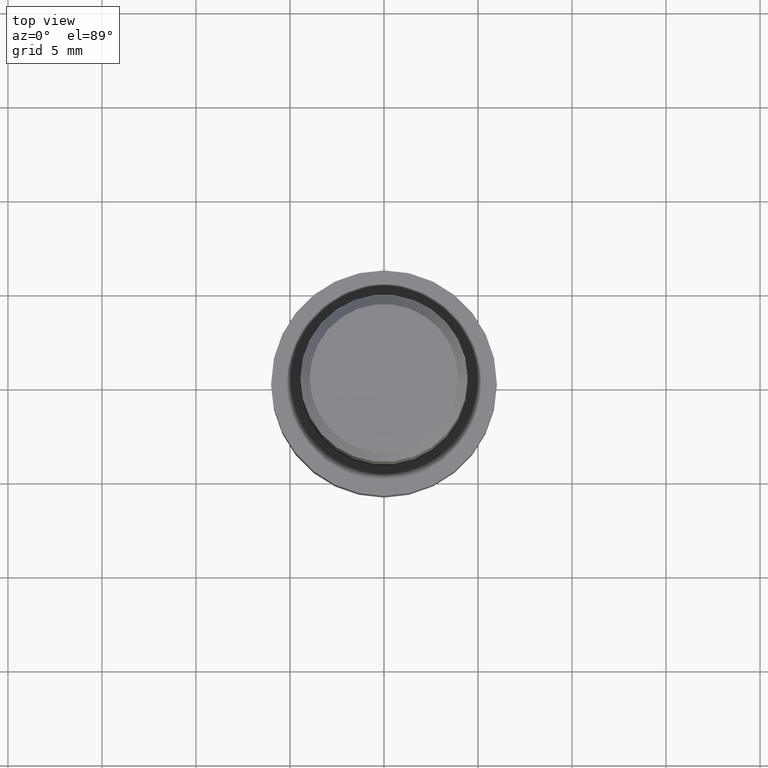
[diagram: clean part render]
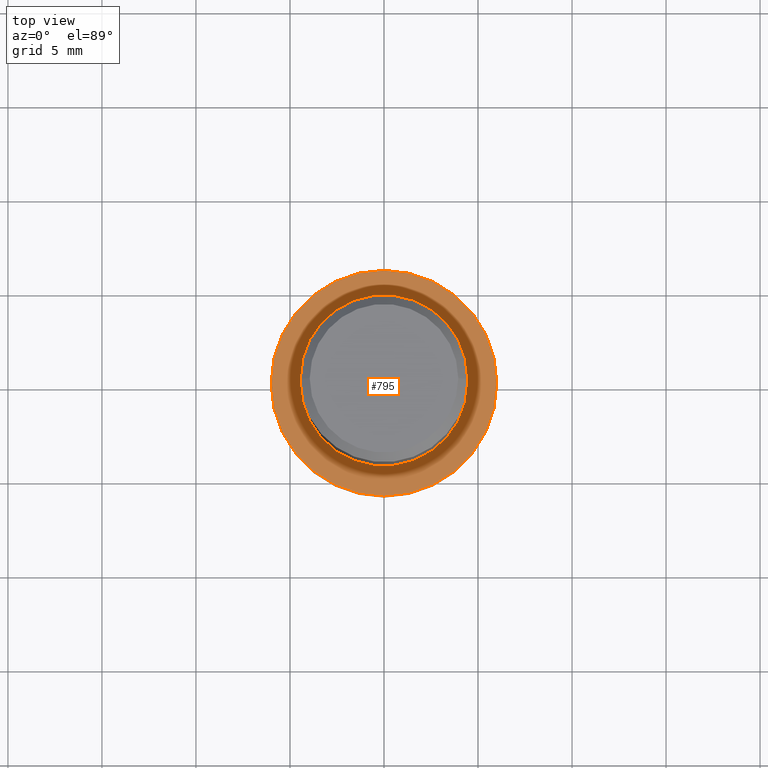
[diagram: same view with one face highlighted and labeled with its STEP entity id]
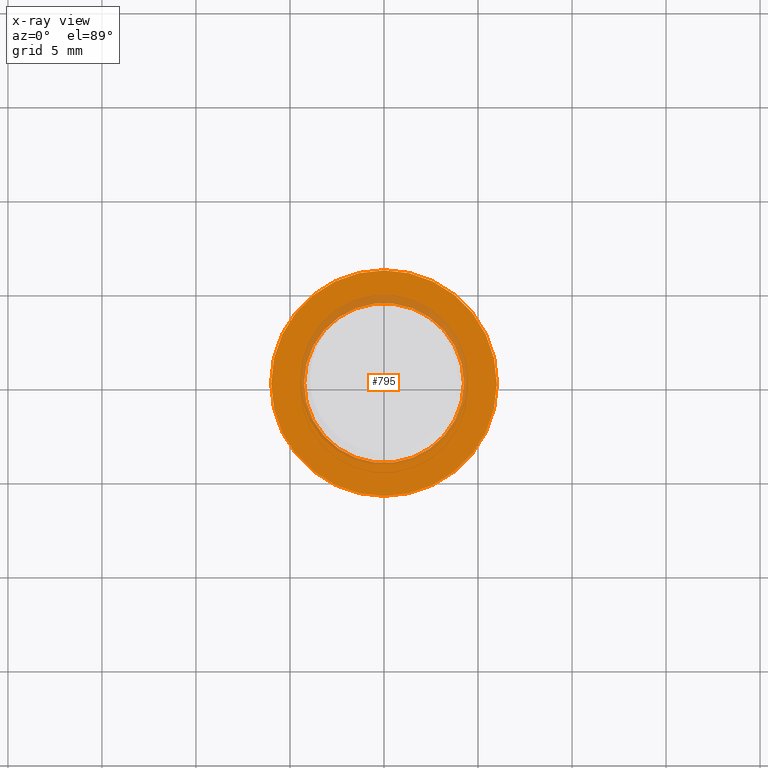
[diagram: x-ray of the same camera — body ghosted, the highlighted face saturated]
A machine part, top view. The second image highlights one B-rep face of the part: STEP entity #795.
The next image is the same camera in x-ray: the body ghosted, the highlighted face saturated — about 12% of this face is hidden behind the body in this view.
In plain terms, the highlighted planar face has unit normal (0, 0, 1).
Its self-contained STEP definition (entity closure, byte-faithful):
#124 = EDGE_CURVE ( 'NONE', #860, #12653, #7501, .T. ) ;
#247 = EDGE_LOOP ( 'NONE', ( #1302, #12183 ) ) ;
#773 = ORIENTED_EDGE ( 'NONE', *, *, #10789, .T. ) ;
#795 = ADVANCED_FACE ( 'NONE', ( #8153, #8984 ), #2700, .T. ) ;
#860 = VERTEX_POINT ( 'NONE', #2040 ) ;
#1302 = ORIENTED_EDGE ( 'NONE', *, *, #9576, .F. ) ;
#1421 = CARTESIAN_POINT ( 'NONE',  ( 0.000000000000000000, -2.143131898507868643E-15, 2.499999999999998668 ) ) ;
#1762 = DIRECTION ( 'NONE',  ( -0.000000000000000000, -0.000000000000000000, -1.000000000000000000 ) ) ;
#2040 = CARTESIAN_POINT ( 'NONE',  ( 6.000000000000001776, -1.408343819019456570E-15, 2.499999999999998668 ) ) ;
#2118 = ORIENTED_EDGE ( 'NONE', *, *, #8279, .T. ) ;
#2177 = CIRCLE ( 'NONE', #5194, 6.000000000000001776 ) ;
#2700 = PLANE ( 'NONE',  #8989 ) ;
#2796 = CARTESIAN_POINT ( 'NONE',  ( 0.000000000000000000, 4.249999999999996447, 2.499999999999999556 ) ) ;
#2897 = CARTESIAN_POINT ( 'NONE',  ( 0.000000000000000000, -2.143131898507868643E-15, 2.499999999999998668 ) ) ;
#3889 = CARTESIAN_POINT ( 'NONE',  ( 0.000000000000000000, -2.143131898507868643E-15, 2.499999999999998668 ) ) ;
#5194 = AXIS2_PLACEMENT_3D ( 'NONE', #2897, #1762, #9355 ) ;
#5221 = CIRCLE ( 'NONE', #6943, 4.249999999999998224 ) ;
#5859 = DIRECTION ( 'NONE',  ( -0.000000000000000000, -0.000000000000000000, -1.000000000000000000 ) ) ;
#6009 = DIRECTION ( 'NONE',  ( 1.000000000000000000, 0.000000000000000000, -0.000000000000000000 ) ) ;
#6943 = AXIS2_PLACEMENT_3D ( 'NONE', #1421, #5859, #8185 ) ;
#7353 = EDGE_LOOP ( 'NONE', ( #2118, #773 ) ) ;
#7501 = CIRCLE ( 'NONE', #11623, 6.000000000000001776 ) ;
#7534 = AXIS2_PLACEMENT_3D ( 'NONE', #3889, #8291, #13527 ) ;
#8048 = DIRECTION ( 'NONE',  ( -1.000000000000000000, 0.000000000000000000, 0.000000000000000000 ) ) ;
#8153 = FACE_BOUND ( 'NONE', #7353, .T. ) ;
#8185 = DIRECTION ( 'NONE',  ( -1.000000000000000000, 0.000000000000000000, 0.000000000000000000 ) ) ;
#8279 = EDGE_CURVE ( 'NONE', #10210, #13733, #9569, .T. ) ;
#8291 = DIRECTION ( 'NONE',  ( -0.000000000000000000, -0.000000000000000000, -1.000000000000000000 ) ) ;
#8984 = FACE_OUTER_BOUND ( 'NONE', #247, .T. ) ;
#8989 = AXIS2_PLACEMENT_3D ( 'NONE', #2796, #12628, #6009 ) ;
#9355 = DIRECTION ( 'NONE',  ( -1.000000000000000000, 0.000000000000000000, 0.000000000000000000 ) ) ;
#9569 = CIRCLE ( 'NONE', #7534, 4.249999999999998224 ) ;
#9576 = EDGE_CURVE ( 'NONE', #12653, #860, #2177, .T. ) ;
#10123 = DIRECTION ( 'NONE',  ( -0.000000000000000000, -0.000000000000000000, -1.000000000000000000 ) ) ;
#10210 = VERTEX_POINT ( 'NONE', #10248 ) ;
#10248 = CARTESIAN_POINT ( 'NONE',  ( -4.249999999999998224, -2.143131898507868643E-15, 2.499999999999998668 ) ) ;
#10789 = EDGE_CURVE ( 'NONE', #13733, #10210, #5221, .T. ) ;
#11391 = CARTESIAN_POINT ( 'NONE',  ( 4.249999999999998224, -1.622657008870243868E-15, 2.499999999999998668 ) ) ;
#11623 = AXIS2_PLACEMENT_3D ( 'NONE', #13417, #10123, #8048 ) ;
#12183 = ORIENTED_EDGE ( 'NONE', *, *, #124, .F. ) ;
#12556 = CARTESIAN_POINT ( 'NONE',  ( -6.000000000000001776, -2.143131898507868643E-15, 2.499999999999998668 ) ) ;
#12628 = DIRECTION ( 'NONE',  ( 0.000000000000000000, 0.000000000000000000, 1.000000000000000000 ) ) ;
#12653 = VERTEX_POINT ( 'NONE', #12556 ) ;
#13417 = CARTESIAN_POINT ( 'NONE',  ( 0.000000000000000000, -2.143131898507868643E-15, 2.499999999999998668 ) ) ;
#13527 = DIRECTION ( 'NONE',  ( -1.000000000000000000, 0.000000000000000000, 0.000000000000000000 ) ) ;
#13733 = VERTEX_POINT ( 'NONE', #11391 ) ;